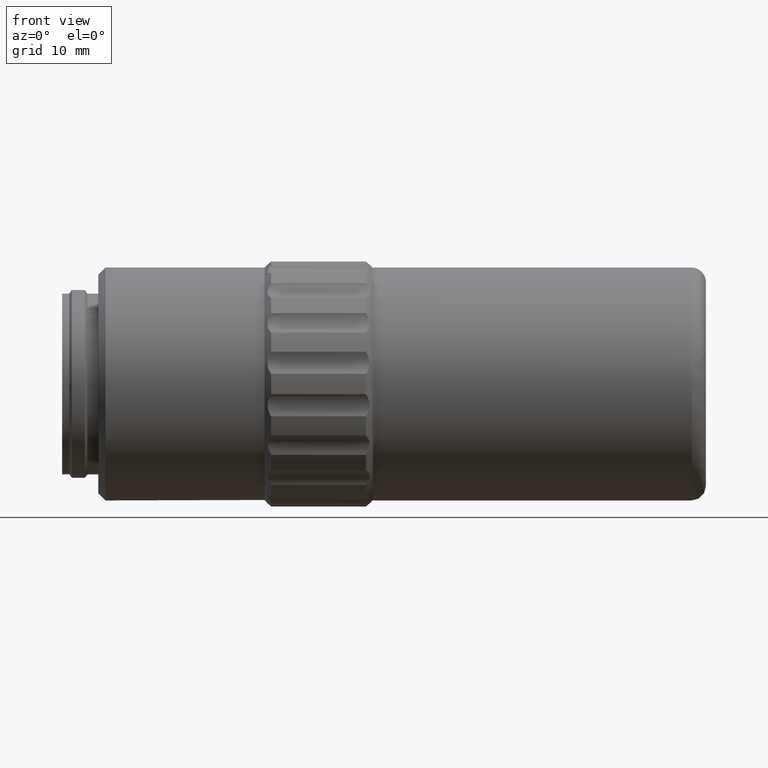
[diagram: clean part render]
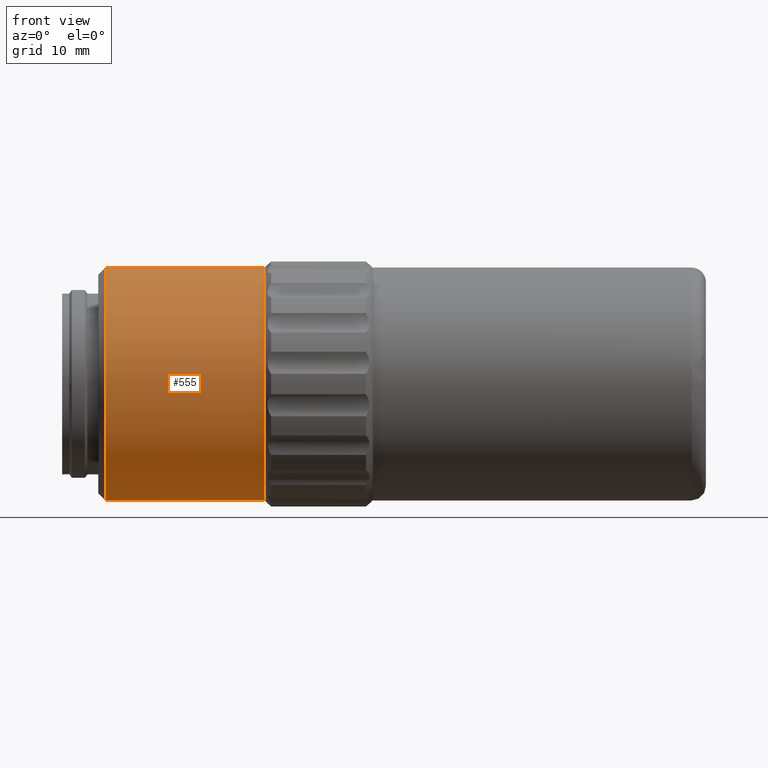
[diagram: same view with one face highlighted and labeled with its STEP entity id]
A machine part, front view. The second image highlights one B-rep face of the part: STEP entity #555.
In plain terms, the highlighted cylindrical surface (bore or boss wall) has radius 16.1 mm, axis along (-1, 0, 0).
Its self-contained STEP definition (entity closure, byte-faithful):
#170 = ORIENTED_EDGE ( 'NONE', *, *, #515, .T. ) ;
#209 = DIRECTION ( 'NONE',  ( 0.000000000000000000, 0.000000000000000000, 1.000000000000000000 ) ) ;
#226 = CARTESIAN_POINT ( 'NONE',  ( 18.44685803487879738, 29.92096199999999584, 0.000000000000000000 ) ) ;
#372 = CARTESIAN_POINT ( 'NONE',  ( 6.946858034878798271, 46.02096199999999726, 0.000000000000000000 ) ) ;
#424 = AXIS2_PLACEMENT_3D ( 'NONE', #372, #1362, #1386 ) ;
#515 = EDGE_CURVE ( 'NONE', #835, #835, #1141, .T. ) ;
#527 = DIRECTION ( 'NONE',  ( 1.000000000000000000, 0.000000000000000000, 0.000000000000000000 ) ) ;
#548 = CARTESIAN_POINT ( 'NONE',  ( 18.44685803487879738, 46.02096199999999726, 0.000000000000000000 ) ) ;
#555 = ADVANCED_FACE ( 'NONE', ( #1845, #1220 ), #1871, .T. ) ;
#835 = VERTEX_POINT ( 'NONE', #2015 ) ;
#1141 = CIRCLE ( 'NONE', #1957, 16.10000000000000142 ) ;
#1146 = EDGE_LOOP ( 'NONE', ( #170 ) ) ;
#1175 = CARTESIAN_POINT ( 'NONE',  ( -3.553141965121202617, 46.02096199999999726, 0.000000000000000000 ) ) ;
#1220 = FACE_OUTER_BOUND ( 'NONE', #1376, .T. ) ;
#1223 = ORIENTED_EDGE ( 'NONE', *, *, #1241, .F. ) ;
#1241 = EDGE_CURVE ( 'NONE', #1971, #1971, #2052, .T. ) ;
#1362 = DIRECTION ( 'NONE',  ( -1.000000000000000000, 0.000000000000000000, 0.000000000000000000 ) ) ;
#1376 = EDGE_LOOP ( 'NONE', ( #1223 ) ) ;
#1386 = DIRECTION ( 'NONE',  ( 0.000000000000000000, 0.000000000000000000, 1.000000000000000000 ) ) ;
#1488 = DIRECTION ( 'NONE',  ( 0.000000000000000000, -1.000000000000000000, 0.000000000000000000 ) ) ;
#1824 = DIRECTION ( 'NONE',  ( 1.000000000000000000, -0.000000000000000000, -0.000000000000000000 ) ) ;
#1845 = FACE_OUTER_BOUND ( 'NONE', #1146, .T. ) ;
#1871 = CYLINDRICAL_SURFACE ( 'NONE', #424, 16.10000000000000142 ) ;
#1950 = AXIS2_PLACEMENT_3D ( 'NONE', #548, #527, #1488 ) ;
#1957 = AXIS2_PLACEMENT_3D ( 'NONE', #1175, #1824, #209 ) ;
#1971 = VERTEX_POINT ( 'NONE', #226 ) ;
#2015 = CARTESIAN_POINT ( 'NONE',  ( -3.553141965121202617, 46.02096199999999726, 16.10000000000000142 ) ) ;
#2052 = CIRCLE ( 'NONE', #1950, 16.10000000000000142 ) ;